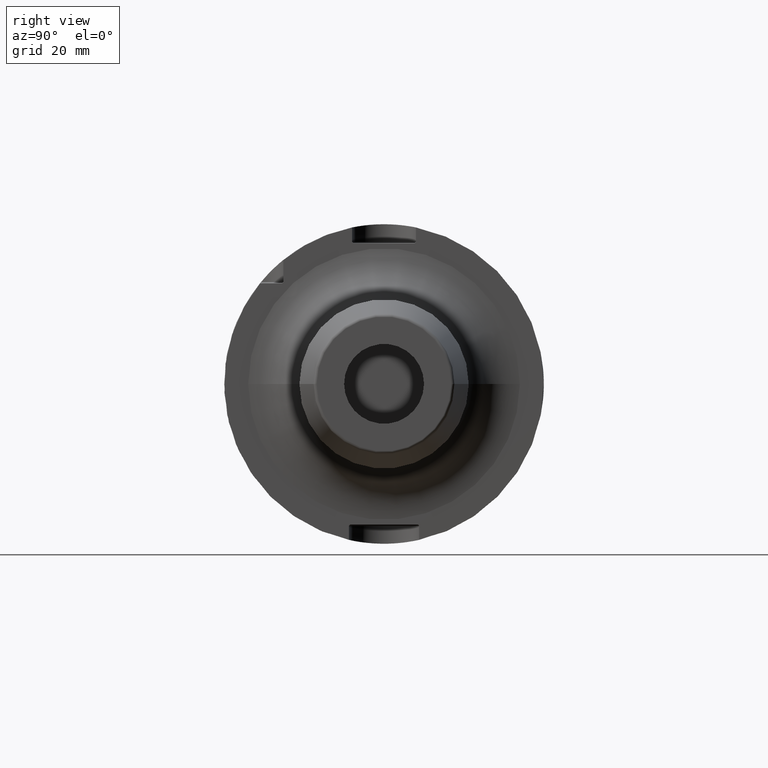
[diagram: clean part render]
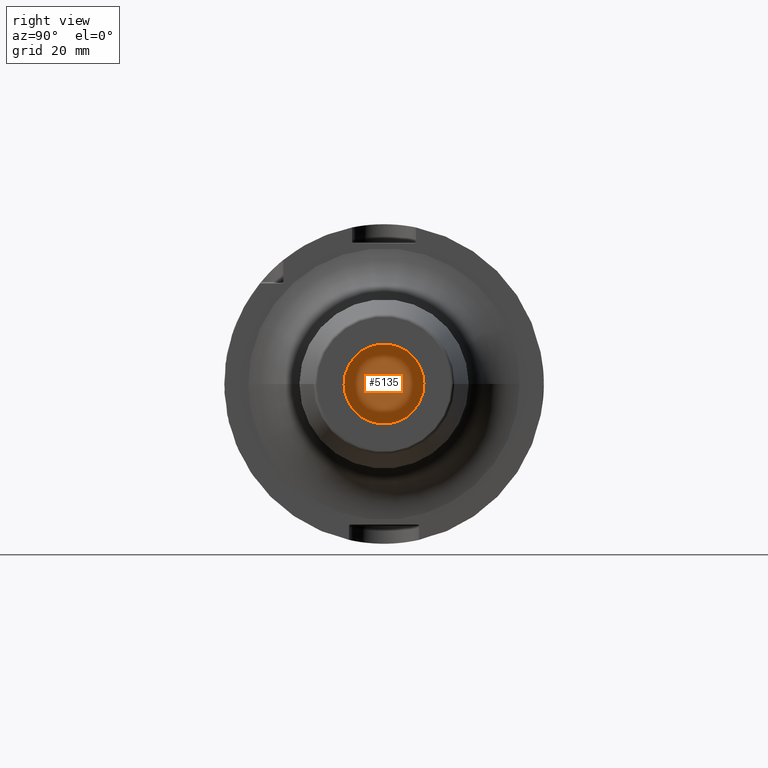
[diagram: same view with one face highlighted and labeled with its STEP entity id]
A machine part, right view. The second image highlights one B-rep face of the part: STEP entity #5135.
In plain terms, the highlighted planar face has unit normal (1, 0, 0).
Its self-contained STEP definition (entity closure, byte-faithful):
#1904=CARTESIAN_POINT('',(7.2E1,0.E0,0.E0));
#1905=DIRECTION('',(-1.E0,0.E0,0.E0));
#1906=DIRECTION('',(0.E0,1.E0,0.E0));
#1907=AXIS2_PLACEMENT_3D('',#1904,#1905,#1906);
#1909=CARTESIAN_POINT('',(7.2E1,0.E0,0.E0));
#1910=DIRECTION('',(1.E0,0.E0,0.E0));
#1911=DIRECTION('',(0.E0,1.E0,0.E0));
#1912=AXIS2_PLACEMENT_3D('',#1909,#1910,#1911);
#3125=CARTESIAN_POINT('',(7.2E1,1.25E1,0.E0));
#3126=CARTESIAN_POINT('',(7.2E1,-1.25E1,0.E0));
#3127=VERTEX_POINT('',#3125);
#3128=VERTEX_POINT('',#3126);
#5126=CARTESIAN_POINT('',(7.2E1,0.E0,0.E0));
#5127=DIRECTION('',(1.E0,0.E0,0.E0));
#5128=DIRECTION('',(0.E0,-1.E0,0.E0));
#5129=AXIS2_PLACEMENT_3D('',#5126,#5127,#5128);
#5130=PLANE('',#5129);
#5131=ORIENTED_EDGE('',*,*,#5121,.T.);
#5132=ORIENTED_EDGE('',*,*,#5105,.F.);
#5133=EDGE_LOOP('',(#5131,#5132));
#5134=FACE_OUTER_BOUND('',#5133,.F.);
#5135=ADVANCED_FACE('',(#5134),#5130,.T.);
#1908=CIRCLE('',#1907,1.25E1);
#1913=CIRCLE('',#1912,1.25E1);
#5105=EDGE_CURVE('',#3127,#3128,#1913,.T.);
#5121=EDGE_CURVE('',#3127,#3128,#1908,.T.);